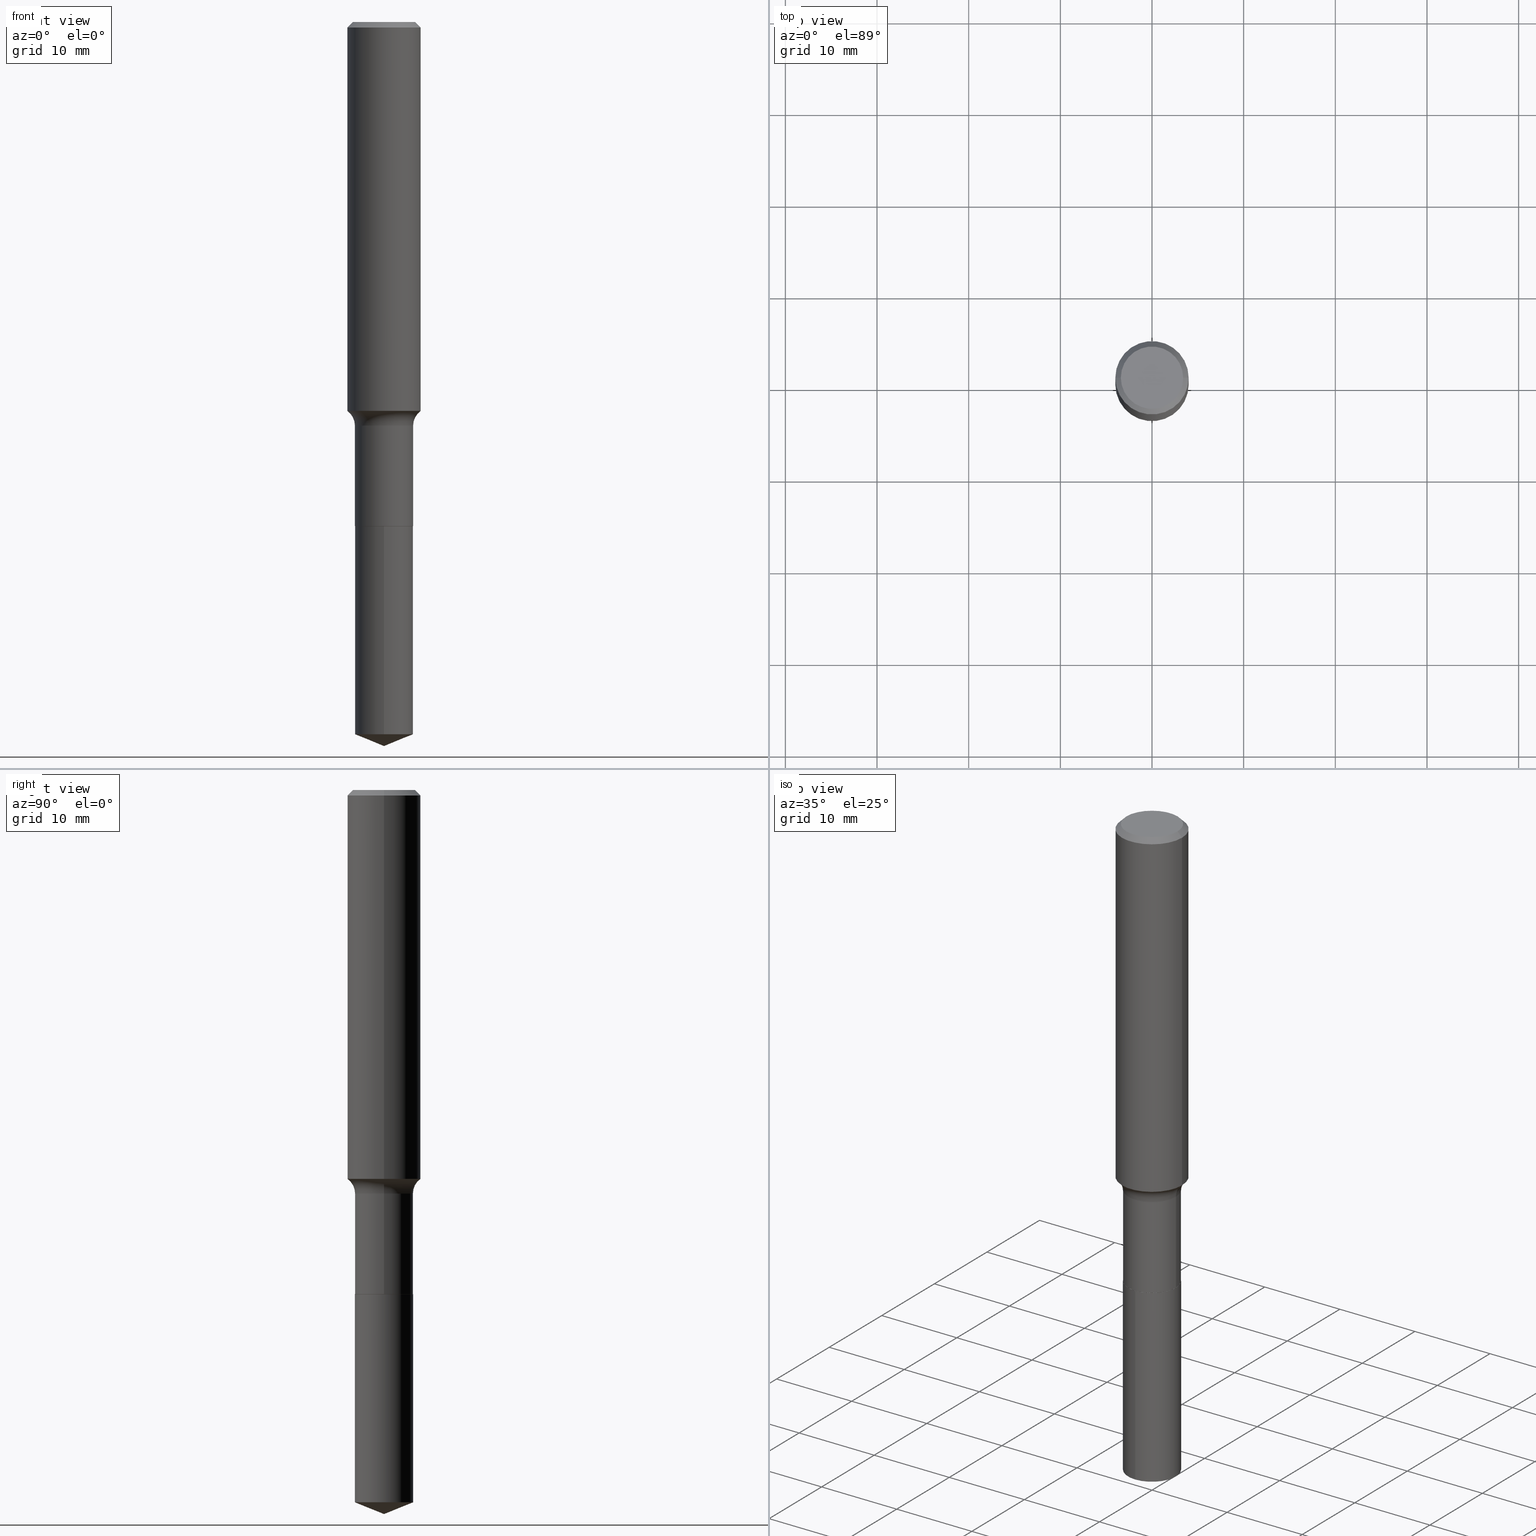
[diagram: canonical four-view strip — front | top / right | iso, engineering-drawing reading convention]
A machine part, canonical four-view strip (front | top / right | iso — engineering-drawing reading convention). The complete STEP part file that produces these views, byte-faithful:
ISO-10303-21;
HEADER;
FILE_DESCRIPTION (( 'STEP AP203' ),
    '1' );
FILE_NAME ('56810.STEP',
    '2024-04-19T14:02:21',
    ( '' ),
    ( '' ),
    'SwSTEP 2.0',
    'SolidWorks 2023',
    '' );
FILE_SCHEMA (( 'CONFIG_CONTROL_DESIGN' ));
ENDSEC;

DATA;
#1 = DIRECTION ( 'NONE',  ( -2.445585184634229399E-29, 3.491314678280194748E-15, 1.000000000000000000 ) ) ;
#2 = ORIENTED_EDGE ( 'NONE', *, *, #138, .T. ) ;
#3 = AXIS2_PLACEMENT_3D ( 'NONE', #249, #330, #117 ) ;
#4 = CALENDAR_DATE ( 2024, 19, 4 ) ;
#5 = EDGE_CURVE ( 'NONE', #236, #68, #53, .T. ) ;
#6 = ORIENTED_EDGE ( 'NONE', *, *, #7, .T. ) ;
#7 = EDGE_CURVE ( 'NONE', #18, #81, #10, .T. ) ;
#8 = DIRECTION ( 'NONE',  ( -2.445468806185136597E-29, 3.491481338843145583E-15, 1.000000000000000000 ) ) ;
#9 = ORIENTED_EDGE ( 'NONE', *, *, #61, .T. ) ;
#10 = LINE ( 'NONE', #433, #488 ) ;
#11 = ADVANCED_FACE ( 'NONE', ( #299 ), #337, .F. ) ;
#12 = EDGE_LOOP ( 'NONE', ( #202, #6, #70, #164 ) ) ;
#13 = DIRECTION ( 'NONE',  ( 1.000000000000000000, -6.982962677686266711E-15, 0.000000000000000000 ) ) ;
#14 = DIRECTION ( 'NONE',  ( 1.000000000000000000, -6.982962677686267499E-15, 4.876176775795936353E-29 ) ) ;
#15 = ORIENTED_EDGE ( 'NONE', *, *, #156, .F. ) ;
#16 = DIRECTION ( 'NONE',  ( 1.000000000000000000, -6.982962677686265922E-15, 0.000000000000000000 ) ) ;
#17 = FACE_OUTER_BOUND ( 'NONE', #52, .T. ) ;
#18 = VERTEX_POINT ( 'NONE', #168 ) ;
#19 = CARTESIAN_POINT ( 'NONE',  ( 5.295173606032675561E-29, -7.560104542997063911E-15, -2.165299999999999780 ) ) ;
#20 = CARTESIAN_POINT ( 'NONE',  ( 5.295173606032675561E-29, -7.560104542997063911E-15, -2.165299999999999780 ) ) ;
#21 = ADVANCED_FACE ( 'NONE', ( #302 ), #260, .T. ) ;
#22 = AXIS2_PLACEMENT_3D ( 'NONE', #466, #161, #13 ) ;
#23 = CALENDAR_DATE ( 2024, 19, 4 ) ;
#24 = DIRECTION ( 'NONE',  ( 1.000000000000000000, 0.000000000000000000, 0.000000000000000000 ) ) ;
#25 = DIRECTION ( 'NONE',  ( -0.7071067811866682540, 7.493145998870789611E-15, 0.7071067811864267805 ) ) ;
#26 = CALENDAR_DATE ( 2024, 19, 4 ) ;
#27 = CARTESIAN_POINT ( 'NONE',  ( 8.881784197002001741E-16, 0.1249999999999893557, -3.059696721770607475 ) ) ;
#28 = AXIS2_PLACEMENT_3D ( 'NONE', #96, #155, #252 ) ;
#29 = DIRECTION ( 'NONE',  ( -2.445468806185136597E-29, 3.491481338843145583E-15, 1.000000000000000000 ) ) ;
#30 = CIRCLE ( 'NONE', #340, 0.1244999999999999996 ) ;
#31 = CARTESIAN_POINT ( 'NONE',  ( 5.293950871629583880E-29, -7.558358802327641618E-15, -2.164800000000000058 ) ) ;
#32 = APPROVAL_STATUS ( 'not_yet_approved' ) ;
#33 = CYLINDRICAL_SURFACE ( 'NONE', #327, 0.1575000000000000844 ) ;
#34 = CARTESIAN_POINT ( 'NONE',  ( 0.1575000000000000844, -1.099816621735587677E-15, 7.679978421878603638E-30 ) ) ;
#35 = ADVANCED_FACE ( 'NONE', ( #402 ), #258, .T. ) ;
#36 = CARTESIAN_POINT ( 'NONE',  ( 0.000000000000000000, 0.000000000000000000, 0.000000000000000000 ) ) ;
#37 = CARTESIAN_POINT ( 'NONE',  ( 7.482496977980294484E-29, -1.068272494592047058E-14, -3.059696721770606587 ) ) ;
#38 = AXIS2_PLACEMENT_3D ( 'NONE', #84, #395, #465 ) ;
#39 = ORIENTED_EDGE ( 'NONE', *, *, #472, .T. ) ;
#40 = CC_DESIGN_APPROVAL ( #237, ( #76 ) ) ;
#41 = DIRECTION ( 'NONE',  ( -2.445468806185136597E-29, 3.491481338843145583E-15, 1.000000000000000000 ) ) ;
#42 = EDGE_LOOP ( 'NONE', ( #282, #379, #39, #257 ) ) ;
#43 = DIRECTION ( 'NONE',  ( -2.445468806185136597E-29, 3.491481338843145583E-15, 1.000000000000000000 ) ) ;
#44 = DIRECTION ( 'NONE',  ( -2.445468806185136597E-29, 3.491481338843145583E-15, 1.000000000000000000 ) ) ;
#45 = CALENDAR_DATE ( 2024, 19, 4 ) ;
#46 = CARTESIAN_POINT ( 'NONE',  ( -8.728703347107302879E-16, -0.1250000000000075495, -2.165299999999999336 ) ) ;
#47 = FACE_OUTER_BOUND ( 'NONE', #116, .T. ) ;
#48 = EDGE_LOOP ( 'NONE', ( #87, #438, #303 ) ) ;
#49 = CIRCLE ( 'NONE', #455, 0.07800000000000002764 ) ;
#50 = CC_DESIGN_PERSON_AND_ORGANIZATION_ASSIGNMENT ( #254, #60, ( #212 ) ) ;
#51 = DIRECTION ( 'NONE',  ( -2.445468806185136877E-29, 3.491481338843145188E-15, 1.000000000000000000 ) ) ;
#52 = EDGE_LOOP ( 'NONE', ( #154, #274 ) ) ;
#53 = LINE ( 'NONE', #470, #439 ) ;
#54 = CARTESIAN_POINT ( 'NONE',  ( -1.002970424325033577E-46, 1.431975951230896486E-32, 4.101342130344485961E-18 ) ) ;
#55 = AXIS2_PLACEMENT_3D ( 'NONE', #313, #446, #118 ) ;
#56 = ORGANIZATION ( 'UNSPECIFIED', 'UNSPECIFIED', '' ) ;
#57 = ADVANCED_FACE ( 'NONE', ( #115 ), #326, .F. ) ;
#58 = CARTESIAN_POINT ( 'NONE',  ( -0.1575000000000000011, -1.838827269989437194E-15, -0.02362500000000013201 ) ) ;
#59 = ORIENTED_EDGE ( 'NONE', *, *, #253, .F. ) ;
#60 = PERSON_AND_ORGANIZATION_ROLE ( 'design_owner' ) ;
#61 = EDGE_CURVE ( 'NONE', #192, #160, #288, .T. ) ;
#62 = DIRECTION ( 'NONE',  ( -2.445468806185136597E-29, 3.491481338843145583E-15, 1.000000000000000000 ) ) ;
#63 = DIRECTION ( 'NONE',  ( 1.000000000000000000, -6.982962677686266711E-15, 0.000000000000000000 ) ) ;
#64 = CARTESIAN_POINT ( 'NONE',  ( 0.000000000000000000, 0.000000000000000000, 0.000000000000000000 ) ) ;
#65 = PRODUCT_RELATED_PRODUCT_CATEGORY ( 'detail', '', ( #212 ) ) ;
#66 = CIRCLE ( 'NONE', #55, 0.1250000000000000000 ) ;
#67 = MECHANICAL_CONTEXT ( 'NONE', #358, 'mechanical' ) ;
#68 = VERTEX_POINT ( 'NONE', #58 ) ;
#69 = AXIS2_PLACEMENT_3D ( 'NONE', #285, #428, #362 ) ;
#70 = ORIENTED_EDGE ( 'NONE', *, *, #321, .T. ) ;
#71 = CARTESIAN_POINT ( 'NONE',  ( 0.000000000000000000, 0.000000000000000000, 0.000000000000000000 ) ) ;
#72 = FACE_OUTER_BOUND ( 'NONE', #42, .T. ) ;
#73 = VERTEX_POINT ( 'NONE', #245 ) ;
#74 = EDGE_CURVE ( 'NONE', #73, #397, #208, .T. ) ;
#75 = EDGE_CURVE ( 'NONE', #382, #492, #366, .T. ) ;
#76 = SECURITY_CLASSIFICATION ( '', '', #341 ) ;
#77 = EDGE_LOOP ( 'NONE', ( #415, #454, #106, #250 ) ) ;
#78 = COORDINATED_UNIVERSAL_TIME_OFFSET ( 5, 0, .BEHIND. ) ;
#79 = APPROVAL_STATUS ( 'not_yet_approved' ) ;
#80 = EDGE_LOOP ( 'NONE', ( #59, #143, #328, #392 ) ) ;
#81 = VERTEX_POINT ( 'NONE', #464 ) ;
#82 = CONICAL_SURFACE ( 'NONE', #387, 97.44436430773063762, 1.186823891356152849 ) ;
#83 = DIRECTION ( 'NONE',  ( -2.445468806185136597E-29, 3.491481338843145583E-15, 1.000000000000000000 ) ) ;
#84 = CARTESIAN_POINT ( 'NONE',  ( 5.293950871629583880E-29, -7.558358802327641618E-15, -2.164800000000000058 ) ) ;
#85 = DIRECTION ( 'NONE',  ( -2.445468806185136877E-29, 3.491481338843145188E-15, 1.000000000000000000 ) ) ;
#86 = EDGE_CURVE ( 'NONE', #188, #425, #240, .T. ) ;
#87 = ORIENTED_EDGE ( 'NONE', *, *, #277, .F. ) ;
#88 = ORIENTED_EDGE ( 'NONE', *, *, #92, .F. ) ;
#89 = DIRECTION ( 'NONE',  ( -0.7071067811865453523, 2.468850131082234184E-15, -0.7071067811865496822 ) ) ;
#90 = CIRCLE ( 'NONE', #216, 0.1338749999999999940 ) ;
#91 = LOCAL_TIME ( 10, 2, 21.00000000000000000, #287 ) ;
#92 = EDGE_CURVE ( 'NONE', #194, #342, #140, .T. ) ;
#93 = FACE_OUTER_BOUND ( 'NONE', #12, .T. ) ;
#94 = DIRECTION ( 'NONE',  ( -2.445468806185136597E-29, 3.491481338843145583E-15, 1.000000000000000000 ) ) ;
#95 = PERSON_AND_ORGANIZATION ( #144, #56 ) ;
#96 = CARTESIAN_POINT ( 'NONE',  ( 4.240687456805644908E-29, -6.054577789687898491E-15, -1.734099999999999975 ) ) ;
#97 = DIRECTION ( 'NONE',  ( 1.000000000000000000, -6.982962677686266711E-15, 4.876170806578254279E-29 ) ) ;
#98 = AXIS2_PLACEMENT_3D ( 'NONE', #31, #94, #220 ) ;
#99 = VECTOR ( 'NONE', #25, 39.37007874015748143 ) ;
#100 = FACE_OUTER_BOUND ( 'NONE', #211, .T. ) ;
#101 = DIRECTION ( 'NONE',  ( -2.445468806185136597E-29, 3.491481338843145583E-15, 1.000000000000000000 ) ) ;
#102 = ORIENTED_EDGE ( 'NONE', *, *, #375, .F. ) ;
#103 = AXIS2_PLACEMENT_3D ( 'NONE', #459, #406, #162 ) ;
#104 = UNCERTAINTY_MEASURE_WITH_UNIT (LENGTH_MEASURE( 1.000000000000000082E-05 ), #469, 'distance_accuracy_value', 'NONE');
#105 = DIRECTION ( 'NONE',  ( -2.445468806185136597E-29, 3.491481338843145583E-15, 1.000000000000000000 ) ) ;
#106 = ORIENTED_EDGE ( 'NONE', *, *, #375, .T. ) ;
#107 = DIRECTION ( 'NONE',  ( -2.445468806185136597E-29, 3.491481338843145583E-15, 1.000000000000000000 ) ) ;
#108 = CLOSED_SHELL ( 'NONE', ( #174, #180, #35, #269, #346, #221, #11, #422, #308, #57, #120, #360 ) ) ;
#109 = VECTOR ( 'NONE', #390, 39.37007874015748854 ) ;
#110 = DATE_TIME_ROLE ( 'classification_date' ) ;
#111 = ORIENTED_EDGE ( 'NONE', *, *, #434, .T. ) ;
#112 = ORIENTED_EDGE ( 'NONE', *, *, #130, .T. ) ;
#113 = CARTESIAN_POINT ( 'NONE',  ( 7.605755052737738579E-29, -1.085940865262097747E-14, -3.110199999999999854 ) ) ;
#114 = AXIS2_PLACEMENT_3D ( 'NONE', #483, #367, #297 ) ;
#115 = FACE_OUTER_BOUND ( 'NONE', #136, .T. ) ;
#116 = EDGE_LOOP ( 'NONE', ( #296, #332, #311, #200 ) ) ;
#117 = DIRECTION ( 'NONE',  ( -6.982962677686265922E-15, -1.000000000000000000, 3.498761904101748277E-15 ) ) ;
#118 = DIRECTION ( 'NONE',  ( -6.982962677686265922E-15, -1.000000000000000000, 4.370956789862821150E-15 ) ) ;
#119 = CYLINDRICAL_SURFACE ( 'NONE', #170, 0.1250000000000000278 ) ;
#120 = ADVANCED_FACE ( 'NONE', ( #374 ), #242, .F. ) ;
#121 = CALENDAR_DATE ( 2024, 19, 4 ) ;
#122 = EDGE_LOOP ( 'NONE', ( #238, #146, #111, #102 ) ) ;
#123 = CIRCLE ( 'NONE', #157, 0.1575000000000000011 ) ;
#124 =( NAMED_UNIT ( * ) PLANE_ANGLE_UNIT ( ) SI_UNIT ( $, .RADIAN. ) );
#125 = DIRECTION ( 'NONE',  ( 0.7071067811865453523, -7.319954787623248157E-15, -0.7071067811865496822 ) ) ;
#126 = DIRECTION ( 'NONE',  ( 7.105427357601001859E-15, 1.000000000000000000, -3.491481338843145583E-15 ) ) ;
#127 = EDGE_LOOP ( 'NONE', ( #391, #353, #351, #309 ) ) ;
#128 = EDGE_CURVE ( 'NONE', #306, #492, #376, .T. ) ;
#129 = DIRECTION ( 'NONE',  ( -6.982962677686265922E-15, -1.000000000000000000, 3.498761904101748277E-15 ) ) ;
#130 = EDGE_CURVE ( 'NONE', #192, #73, #215, .T. ) ;
#131 = VECTOR ( 'NONE', #51, 39.37007874015748143 ) ;
#132 = CONICAL_SURFACE ( 'NONE', #361, 0.1244999999999999996, 0.7853981633976190313 ) ;
#133 = COORDINATED_UNIVERSAL_TIME_OFFSET ( 5, 0, .BEHIND. ) ;
#134 = ADVANCED_FACE ( 'NONE', ( #17 ), #339, .F. ) ;
#135 = DESIGN_CONTEXT ( 'detailed design', #421, 'design' ) ;
#136 = EDGE_LOOP ( 'NONE', ( #485, #289 ) ) ;
#137 = ORIENTED_EDGE ( 'NONE', *, *, #128, .F. ) ;
#138 = EDGE_CURVE ( 'NONE', #73, #192, #185, .T. ) ;
#139 = PERSON_AND_ORGANIZATION_ROLE ( 'classification_officer' ) ;
#140 = CIRCLE ( 'NONE', #22, 0.1244999999999999996 ) ;
#141 = AXIS2_PLACEMENT_3D ( 'NONE', #54, #467, #97 ) ;
#142 = DIRECTION ( 'NONE',  ( -6.982962677686265922E-15, -1.000000000000000000, 4.370956789862821150E-15 ) ) ;
#143 = ORIENTED_EDGE ( 'NONE', *, *, #92, .T. ) ;
#144 = PERSON ( 'UNSPECIFIED', 'UNSPECIFIED', 'UNSPECIFIED', ('UNSPECIFIED'), ('UNSPECIFIED'), ('UNSPECIFIED') ) ;
#145 = ORIENTED_EDGE ( 'NONE', *, *, #74, .F. ) ;
#146 = ORIENTED_EDGE ( 'NONE', *, *, #411, .T. ) ;
#147 = AXIS2_PLACEMENT_3D ( 'NONE', #37, #191, #142 ) ;
#148 = AXIS2_PLACEMENT_3D ( 'NONE', #453, #101, #265 ) ;
#149 = CC_DESIGN_DATE_AND_TIME_ASSIGNMENT ( #324, #110, ( #76 ) ) ;
#150 = DIRECTION ( 'NONE',  ( 1.000000000000000000, -6.982962677686266711E-15, 0.000000000000000000 ) ) ;
#151 = PERSON_AND_ORGANIZATION ( #144, #56 ) ;
#152 =( LENGTH_UNIT ( ) NAMED_UNIT ( * ) SI_UNIT ( $, .METRE. ) );
#153 = ADVANCED_FACE ( 'NONE', ( #72 ), #283, .T. ) ;
#154 = ORIENTED_EDGE ( 'NONE', *, *, #128, .T. ) ;
#155 = DIRECTION ( 'NONE',  ( -2.445468806185136597E-29, 3.491481338843145583E-15, 1.000000000000000000 ) ) ;
#156 = EDGE_CURVE ( 'NONE', #247, #382, #175, .T. ) ;
#157 = AXIS2_PLACEMENT_3D ( 'NONE', #235, #83, #424 ) ;
#158 = CC_DESIGN_SECURITY_CLASSIFICATION ( #76, ( #418 ) ) ;
#159 = DIRECTION ( 'NONE',  ( -2.445585184634229399E-29, 3.491314678280194748E-15, 1.000000000000000000 ) ) ;
#160 = VERTEX_POINT ( 'NONE', #228 ) ;
#161 = DIRECTION ( 'NONE',  ( -2.445468806185136597E-29, 3.491481338843145583E-15, 1.000000000000000000 ) ) ;
#162 = DIRECTION ( 'NONE',  ( -1.000000000000000000, 6.982962677686265922E-15, -4.876176775795935793E-29 ) ) ;
#163 = DIRECTION ( 'NONE',  ( 1.000000000000000000, -6.982962677686265922E-15, 0.000000000000000000 ) ) ;
#164 = ORIENTED_EDGE ( 'NONE', *, *, #5, .F. ) ;
#165 = DIRECTION ( 'NONE',  ( 1.000000000000000000, -6.982962677686267499E-15, 4.876176775795935793E-29 ) ) ;
#166 = DIRECTION ( 'NONE',  ( -2.445468806185136877E-29, 3.491481338843145188E-15, 1.000000000000000000 ) ) ;
#167 = DIRECTION ( 'NONE',  ( -2.445585184634229399E-29, 3.491314678280194748E-15, 1.000000000000000000 ) ) ;
#168 = CARTESIAN_POINT ( 'NONE',  ( 0.1338749999999999940, -1.040731925365424925E-15, 4.101342130351393887E-18 ) ) ;
#169 = VECTOR ( 'NONE', #159, 39.37007874015748143 ) ;
#170 = AXIS2_PLACEMENT_3D ( 'NONE', #293, #62, #165 ) ;
#171 = CARTESIAN_POINT ( 'NONE',  ( -0.2029999999999999860, -4.612176036094894621E-15, -1.734099999999999975 ) ) ;
#172 = CARTESIAN_POINT ( 'NONE',  ( -0.1575000000000002232, -4.714273102170862595E-15, -1.670745836758741554 ) ) ;
#173 = CARTESIAN_POINT ( 'NONE',  ( -0.1244999999999999996, -6.675478836975738788E-15, -2.165299999999999780 ) ) ;
#174 = ADVANCED_FACE ( 'NONE', ( #318 ), #132, .T. ) ;
#175 = LINE ( 'NONE', #232, #186 ) ;
#176 = AXIS2_PLACEMENT_3D ( 'NONE', #64, #203, #14 ) ;
#177 = AXIS2_PLACEMENT_3D ( 'NONE', #276, #8, #458 ) ;
#178 = CC_DESIGN_APPROVAL ( #471, ( #418 ) ) ;
#179 = CYLINDRICAL_SURFACE ( 'NONE', #114, 0.1250000000000000000 ) ;
#180 = ADVANCED_FACE ( 'NONE', ( #93 ), #207, .T. ) ;
#181 = PERSON_AND_ORGANIZATION ( #144, #56 ) ;
#182 = CARTESIAN_POINT ( 'NONE',  ( 4.240687456805644908E-29, -6.054577789687898491E-15, -1.734099999999999975 ) ) ;
#183 = LINE ( 'NONE', #385, #275 ) ;
#184 = FACE_OUTER_BOUND ( 'NONE', #80, .T. ) ;
#185 = CIRCLE ( 'NONE', #98, 0.1250000000000000555 ) ;
#186 = VECTOR ( 'NONE', #271, 39.37007874015748143 ) ;
#187 = ORIENTED_EDGE ( 'NONE', *, *, #321, .F. ) ;
#188 = VERTEX_POINT ( 'NONE', #172 ) ;
#189 = CARTESIAN_POINT ( 'NONE',  ( -8.728703347107302879E-16, -0.1250000000000075495, -2.165299999999999336 ) ) ;
#190 = DATE_AND_TIME ( #45, #243 ) ;
#191 = DIRECTION ( 'NONE',  ( -2.445585184634229399E-29, 3.491314678280194748E-15, 1.000000000000000000 ) ) ;
#192 = VERTEX_POINT ( 'NONE', #343 ) ;
#193 = APPROVAL_ROLE ( '' ) ;
#194 = VERTEX_POINT ( 'NONE', #290 ) ;
#195 = AXIS2_PLACEMENT_3D ( 'NONE', #489, #105, #419 ) ;
#196 = APPROVAL_PERSON_ORGANIZATION ( #345, #471, #476 ) ;
#197 = DIRECTION ( 'NONE',  ( -1.000000000000000000, 7.105427357601001859E-15, 0.000000000000000000 ) ) ;
#198 = APPLICATION_PROTOCOL_DEFINITION ( 'international standard', 'config_control_design', 1994, #421 ) ;
#199 = FACE_OUTER_BOUND ( 'NONE', #122, .T. ) ;
#200 = ORIENTED_EDGE ( 'NONE', *, *, #399, .T. ) ;
#201 = DIRECTION ( 'NONE',  ( -2.445585184634229399E-29, 3.491314678280194748E-15, 1.000000000000000000 ) ) ;
#202 = ORIENTED_EDGE ( 'NONE', *, *, #286, .F. ) ;
#203 = DIRECTION ( 'NONE',  ( -2.445468806185136597E-29, 3.491481338843145583E-15, 1.000000000000000000 ) ) ;
#204 = EDGE_CURVE ( 'NONE', #342, #73, #183, .T. ) ;
#205 = EDGE_LOOP ( 'NONE', ( #432, #272, #187, #400 ) ) ;
#206 = AXIS2_PLACEMENT_3D ( 'NONE', #331, #167, #435 ) ;
#207 = CONICAL_SURFACE ( 'NONE', #479, 0.1575000000000000011, 0.7853981633974452814 ) ;
#208 = LINE ( 'NONE', #398, #131 ) ;
#209 = CARTESIAN_POINT ( 'NONE',  ( 0.1249999999999999861, -6.927448124398681041E-15, -1.734099999999999975 ) ) ;
#210 = COORDINATED_UNIVERSAL_TIME_OFFSET ( 5, 0, .BEHIND. ) ;
#211 = EDGE_LOOP ( 'NONE', ( #248, #112, #462, #259 ) ) ;
#212 = PRODUCT ( '56810', '56810', '', ( #67 ) ) ;
#213 = DIRECTION ( 'NONE',  ( -2.445468806185136597E-29, 3.491481338843145583E-15, 1.000000000000000000 ) ) ;
#214 = CARTESIAN_POINT ( 'NONE',  ( 7.606259041249379909E-29, -1.085868691238706343E-14, -3.110199999999999854 ) ) ;
#215 = CIRCLE ( 'NONE', #38, 0.1250000000000000555 ) ;
#216 = AXIS2_PLACEMENT_3D ( 'NONE', #278, #107, #239 ) ;
#217 = CONICAL_SURFACE ( 'NONE', #69, 0.1575000000000000011, 0.7853981633974452814 ) ;
#218 = EDGE_CURVE ( 'NONE', #492, #306, #404, .T. ) ;
#219 = APPROVAL_PERSON_ORGANIZATION ( #457, #449, #193 ) ;
#220 = DIRECTION ( 'NONE',  ( 1.000000000000000000, -6.982962677686267499E-15, 0.000000000000000000 ) ) ;
#221 = ADVANCED_FACE ( 'NONE', ( #100 ), #264, .T. ) ;
#222 = DIRECTION ( 'NONE',  ( -2.445585184634229399E-29, 3.491314678280194748E-15, 1.000000000000000000 ) ) ;
#223 = DIRECTION ( 'NONE',  ( 1.000000000000000000, -6.982962677686268288E-15, 0.000000000000000000 ) ) ;
#224 = PERSON_AND_ORGANIZATION ( #144, #56 ) ;
#225 = CARTESIAN_POINT ( 'NONE',  ( 4.240687456805644908E-29, -6.054577789687898491E-15, -1.734099999999999975 ) ) ;
#226 = AXIS2_PLACEMENT_3D ( 'NONE', #182, #491, #444 ) ;
#227 = ORIENTED_EDGE ( 'NONE', *, *, #233, .F. ) ;
#228 = CARTESIAN_POINT ( 'NONE',  ( -0.1249999999999999861, -5.918289876307644428E-15, -1.734099999999999975 ) ) ;
#229 = LINE ( 'NONE', #34, #323 ) ;
#230 = ADVANCED_FACE ( 'NONE', ( #482 ), #82, .T. ) ;
#231 = MANIFOLD_SOLID_BREP ( 'Body-Move/Copy2[1]', #445 ) ;
#232 = CARTESIAN_POINT ( 'NONE',  ( 7.606263460633716514E-29, -1.085868691238706027E-14, -3.110199999999999854 ) ) ;
#233 = EDGE_CURVE ( 'NONE', #188, #68, #441, .T. ) ;
#234 = CIRCLE ( 'NONE', #147, 0.1250000000000000000 ) ;
#235 = CARTESIAN_POINT ( 'NONE',  ( 5.777420054612417601E-31, -8.248624663016977839E-17, -0.02362500000000013201 ) ) ;
#236 = VERTEX_POINT ( 'NONE', #335 ) ;
#237 = APPROVAL ( #79, 'UNSPECIFIED' ) ;
#238 = ORIENTED_EDGE ( 'NONE', *, *, #86, .F. ) ;
#239 = DIRECTION ( 'NONE',  ( 1.000000000000000000, -6.982962677686266711E-15, 4.876170806578254279E-29 ) ) ;
#240 = CIRCLE ( 'NONE', #386, 0.1575000000000001954 ) ;
#241 = CIRCLE ( 'NONE', #427, 0.07800000000000002764 ) ;
#242 = PLANE ( 'NONE',  #314 ) ;
#243 = LOCAL_TIME ( 10, 2, 21.00000000000000000, #78 ) ;
#244 = APPROVAL_STATUS ( 'not_yet_approved' ) ;
#245 = CARTESIAN_POINT ( 'NONE',  ( 0.1250000000000000555, -8.431229137038424957E-15, -2.164800000000000058 ) ) ;
#246 = EDGE_CURVE ( 'NONE', #342, #194, #30, .T. ) ;
#247 = VERTEX_POINT ( 'NONE', #214 ) ;
#248 = ORIENTED_EDGE ( 'NONE', *, *, #61, .F. ) ;
#249 = CARTESIAN_POINT ( 'NONE',  ( -8.867687423781862441E-28, 1.265942860080548298E-13, 36.25987874015748247 ) ) ;
#250 = ORIENTED_EDGE ( 'NONE', *, *, #414, .T. ) ;
#251 = PERSON_AND_ORGANIZATION_ROLE ( 'creator' ) ;
#252 = DIRECTION ( 'NONE',  ( 1.000000000000000000, -6.982962677686266711E-15, 4.883557194083112901E-29 ) ) ;
#253 = EDGE_CURVE ( 'NONE', #194, #192, #377, .T. ) ;
#254 = PERSON_AND_ORGANIZATION ( #144, #56 ) ;
#255 = ORIENTED_EDGE ( 'NONE', *, *, #363, .F. ) ;
#256 = CARTESIAN_POINT ( 'NONE',  ( -0.1575000000000000844, 1.119104808822158392E-15, -7.747322767151481189E-30 ) ) ;
#257 = ORIENTED_EDGE ( 'NONE', *, *, #218, .F. ) ;
#258 = CYLINDRICAL_SURFACE ( 'NONE', #176, 0.1575000000000000844 ) ;
#259 = ORIENTED_EDGE ( 'NONE', *, *, #434, .F. ) ;
#260 = CONICAL_SURFACE ( 'NONE', #3, 97.44436430773063762, 1.186823891356152849 ) ;
#261 = COORDINATED_UNIVERSAL_TIME_OFFSET ( 5, 0, .BEHIND. ) ;
#262 = CIRCLE ( 'NONE', #226, 0.1249999999999999861 ) ;
#263 = CIRCLE ( 'NONE', #148, 0.1575000000000001954 ) ;
#264 = CYLINDRICAL_SURFACE ( 'NONE', #315, 0.1250000000000000278 ) ;
#265 = DIRECTION ( 'NONE',  ( 1.000000000000000000, -6.982962677686265922E-15, 0.000000000000000000 ) ) ;
#266 = LOCAL_TIME ( 10, 2, 21.00000000000000000, #133 ) ;
#267 = FACE_OUTER_BOUND ( 'NONE', #416, .T. ) ;
#268 = PRODUCT_DEFINITION ( 'UNKNOWN', '', #418, #135 ) ;
#269 = ADVANCED_FACE ( 'NONE', ( #199 ), #349, .F. ) ;
#270 =( NAMED_UNIT ( * ) SI_UNIT ( $, .STERADIAN. ) SOLID_ANGLE_UNIT ( ) );
#271 = DIRECTION ( 'NONE',  ( 6.588037525764811801E-15, 0.9271838545667919762, 0.3746065934159006905 ) ) ;
#272 = ORIENTED_EDGE ( 'NONE', *, *, #233, .T. ) ;
#273 = LINE ( 'NONE', #113, #109 ) ;
#274 = ORIENTED_EDGE ( 'NONE', *, *, #218, .T. ) ;
#275 = VECTOR ( 'NONE', #355, 39.37007874015748143 ) ;
#276 = CARTESIAN_POINT ( 'NONE',  ( 4.240687456805644908E-29, -6.054577789687898491E-15, -1.734099999999999975 ) ) ;
#277 = EDGE_CURVE ( 'NONE', #247, #451, #273, .T. ) ;
#278 = CARTESIAN_POINT ( 'NONE',  ( -1.002970424325033577E-46, 1.431975951230896486E-32, 4.101342130344485961E-18 ) ) ;
#279 = ORIENTED_EDGE ( 'NONE', *, *, #329, .T. ) ;
#280 = PRODUCT_DEFINITION_SHAPE ( 'NONE', 'NONE',  #268 ) ;
#281 = PERSON_AND_ORGANIZATION ( #144, #56 ) ;
#282 = ORIENTED_EDGE ( 'NONE', *, *, #75, .F. ) ;
#283 = CYLINDRICAL_SURFACE ( 'NONE', #440, 0.1250000000000000000 ) ;
#284 = AXIS2_PLACEMENT_3D ( 'NONE', #305, #410, #348 ) ;
#285 = CARTESIAN_POINT ( 'NONE',  ( 5.777420054612417601E-31, -8.248624663016977839E-17, -0.02362500000000013201 ) ) ;
#286 = EDGE_CURVE ( 'NONE', #18, #236, #90, .T. ) ;
#287 = COORDINATED_UNIVERSAL_TIME_OFFSET ( 5, 0, .BEHIND. ) ;
#288 = LINE ( 'NONE', #431, #322 ) ;
#289 = ORIENTED_EDGE ( 'NONE', *, *, #286, .T. ) ;
#290 = CARTESIAN_POINT ( 'NONE',  ( -0.1244999999999999996, -6.672829609801627587E-15, -2.165299999999999780 ) ) ;
#291 = DIRECTION ( 'NONE',  ( 1.000000000000000000, -6.982962677686265922E-15, 4.876176775795935793E-29 ) ) ;
#292 = DIRECTION ( 'NONE',  ( -2.445468806185136597E-29, 3.491481338843145583E-15, 1.000000000000000000 ) ) ;
#293 = CARTESIAN_POINT ( 'NONE',  ( 0.000000000000000000, 0.000000000000000000, 0.000000000000000000 ) ) ;
#294 = CARTESIAN_POINT ( 'NONE',  ( -8.867687423781862441E-28, 1.265942860080548298E-13, 36.25987874015748247 ) ) ;
#295 = APPROVAL_DATE_TIME ( #463, #449 ) ;
#296 = ORIENTED_EDGE ( 'NONE', *, *, #7, .F. ) ;
#297 = DIRECTION ( 'NONE',  ( -6.982962677686265922E-15, -1.000000000000000000, 4.370956789862821150E-15 ) ) ;
#298 = ADVANCED_BREP_SHAPE_REPRESENTATION ( '56810', ( #231, #412, #388 ), #460 ) ;
#299 = FACE_OUTER_BOUND ( 'NONE', #77, .T. ) ;
#300 = ORIENTED_EDGE ( 'NONE', *, *, #246, .F. ) ;
#301 = APPROVAL_DATE_TIME ( #407, #237 ) ;
#302 = FACE_OUTER_BOUND ( 'NONE', #320, .T. ) ;
#303 = ORIENTED_EDGE ( 'NONE', *, *, #329, .F. ) ;
#304 = SHAPE_DEFINITION_REPRESENTATION ( #280, #298 ) ;
#305 = CARTESIAN_POINT ( 'NONE',  ( 5.295173606032675561E-29, -7.560104542997063911E-15, -2.165299999999999780 ) ) ;
#306 = VERTEX_POINT ( 'NONE', #46 ) ;
#307 = DIRECTION ( 'NONE',  ( -2.445585184634229399E-29, 3.491314678280194748E-15, 1.000000000000000000 ) ) ;
#308 = ADVANCED_FACE ( 'NONE', ( #47 ), #217, .T. ) ;
#309 = ORIENTED_EDGE ( 'NONE', *, *, #204, .F. ) ;
#310 = DIRECTION ( 'NONE',  ( 1.000000000000000000, -6.982962677686263555E-15, 0.000000000000000000 ) ) ;
#311 = ORIENTED_EDGE ( 'NONE', *, *, #5, .T. ) ;
#312 = CC_DESIGN_PERSON_AND_ORGANIZATION_ASSIGNMENT ( #224, #480, ( #418 ) ) ;
#313 = CARTESIAN_POINT ( 'NONE',  ( 7.482496977980294484E-29, -1.068272494592047058E-14, -3.059696721770606587 ) ) ;
#314 = AXIS2_PLACEMENT_3D ( 'NONE', #20, #429, #291 ) ;
#315 = AXIS2_PLACEMENT_3D ( 'NONE', #71, #29, #477 ) ;
#316 = CARTESIAN_POINT ( 'NONE',  ( 0.1575000000000002232, -6.933194532728610045E-15, -1.670745836758741554 ) ) ;
#317 = ORIENTED_EDGE ( 'NONE', *, *, #86, .T. ) ;
#318 = FACE_OUTER_BOUND ( 'NONE', #127, .T. ) ;
#319 = ORIENTED_EDGE ( 'NONE', *, *, #354, .T. ) ;
#320 = EDGE_LOOP ( 'NONE', ( #15, #393, #255 ) ) ;
#321 = EDGE_CURVE ( 'NONE', #81, #68, #123, .T. ) ;
#322 = VECTOR ( 'NONE', #85, 39.37007874015748143 ) ;
#323 = VECTOR ( 'NONE', #356, 39.37007874015748143 ) ;
#324 = DATE_AND_TIME ( #121, #475 ) ;
#325 = ORIENTED_EDGE ( 'NONE', *, *, #414, .F. ) ;
#326 = PLANE ( 'NONE',  #103 ) ;
#327 = AXIS2_PLACEMENT_3D ( 'NONE', #36, #41, #486 ) ;
#328 = ORIENTED_EDGE ( 'NONE', *, *, #204, .T. ) ;
#329 = EDGE_CURVE ( 'NONE', #451, #382, #234, .T. ) ;
#330 = DIRECTION ( 'NONE',  ( -2.445585184634229399E-29, 3.491314678280194748E-15, 1.000000000000000000 ) ) ;
#331 = CARTESIAN_POINT ( 'NONE',  ( 5.295173606032675561E-29, -7.560104542997063911E-15, -2.165299999999999780 ) ) ;
#332 = ORIENTED_EDGE ( 'NONE', *, *, #364, .F. ) ;
#333 = CC_DESIGN_PERSON_AND_ORGANIZATION_ASSIGNMENT ( #95, #478, ( #418 ) ) ;
#334 = CARTESIAN_POINT ( 'NONE',  ( 8.881784197001780860E-16, 0.1249999999999924366, -2.165300000000000669 ) ) ;
#335 = CARTESIAN_POINT ( 'NONE',  ( -0.1338749999999999940, 9.760872517903331886E-16, 4.101342130337804525E-18 ) ) ;
#336 = DIRECTION ( 'NONE',  ( 2.445468806185136597E-29, -3.491481338843145583E-15, -1.000000000000000000 ) ) ;
#337 = TOROIDAL_SURFACE ( 'NONE', #28, 0.2029999999999999860, 0.07800000000000002764 ) ;
#338 = DIRECTION ( 'NONE',  ( -2.445468806185136597E-29, 3.491481338843145583E-15, 1.000000000000000000 ) ) ;
#339 = PLANE ( 'NONE',  #284 ) ;
#340 = AXIS2_PLACEMENT_3D ( 'NONE', #19, #338, #63 ) ;
#341 = SECURITY_CLASSIFICATION_LEVEL ( 'unclassified' ) ;
#342 = VERTEX_POINT ( 'NONE', #423 ) ;
#343 = CARTESIAN_POINT ( 'NONE',  ( -0.1250000000000000555, -5.918289876307644428E-15, -2.164800000000000058 ) ) ;
#344 = APPLICATION_PROTOCOL_DEFINITION ( 'international standard', 'config_control_design', 1994, #358 ) ;
#345 = PERSON_AND_ORGANIZATION ( #144, #56 ) ;
#346 = ADVANCED_FACE ( 'NONE', ( #368 ), #119, .T. ) ;
#347 = APPROVAL_DATE_TIME ( #437, #471 ) ;
#348 = DIRECTION ( 'NONE',  ( 6.982962677686265922E-15, 1.000000000000000000, -3.491314678280194748E-15 ) ) ;
#349 = TOROIDAL_SURFACE ( 'NONE', #177, 0.2029999999999999860, 0.07800000000000002764 ) ;
#350 = CC_DESIGN_APPROVAL ( #449, ( #268 ) ) ;
#351 = ORIENTED_EDGE ( 'NONE', *, *, #138, .F. ) ;
#352 = CARTESIAN_POINT ( 'NONE',  ( 8.881784197001999769E-16, 0.1249999999999924366, -2.165300000000000669 ) ) ;
#353 = ORIENTED_EDGE ( 'NONE', *, *, #253, .T. ) ;
#354 = EDGE_CURVE ( 'NONE', #425, #81, #229, .T. ) ;
#355 = DIRECTION ( 'NONE',  ( 0.7071067811866682540, -2.468850131083521605E-15, 0.7071067811864267805 ) ) ;
#356 = DIRECTION ( 'NONE',  ( -2.445468806185136877E-29, 3.491481338843145188E-15, 1.000000000000000000 ) ) ;
#357 = CIRCLE ( 'NONE', #417, 0.1575000000000000011 ) ;
#358 = APPLICATION_CONTEXT ( 'configuration controlled 3d designs of mechanical parts and assemblies' ) ;
#359 = CC_DESIGN_DATE_AND_TIME_ASSIGNMENT ( #190, #408, ( #268 ) ) ;
#360 = ADVANCED_FACE ( 'NONE', ( #184 ), #436, .T. ) ;
#361 = AXIS2_PLACEMENT_3D ( 'NONE', #384, #43, #150 ) ;
#362 = DIRECTION ( 'NONE',  ( -1.000000000000000000, 6.982962677686265922E-15, 0.000000000000000000 ) ) ;
#363 = EDGE_CURVE ( 'NONE', #382, #451, #66, .T. ) ;
#364 = EDGE_CURVE ( 'NONE', #236, #18, #447, .T. ) ;
#365 = DIRECTION ( 'NONE',  ( -1.000000000000000000, 6.982962677686265922E-15, 0.000000000000000000 ) ) ;
#366 = LINE ( 'NONE', #334, #169 ) ;
#367 = DIRECTION ( 'NONE',  ( -2.445585184634229399E-29, 3.491314678280194748E-15, 1.000000000000000000 ) ) ;
#368 = FACE_OUTER_BOUND ( 'NONE', #401, .T. ) ;
#369 = VECTOR ( 'NONE', #1, 39.37007874015748143 ) ;
#370 = CARTESIAN_POINT ( 'NONE',  ( 0.2029999999999999860, -7.472119213258210665E-15, -1.734099999999999975 ) ) ;
#371 = CARTESIAN_POINT ( 'NONE',  ( 4.085756826857186325E-29, -5.833377910993022565E-15, -1.670745836758741554 ) ) ;
#372 = CARTESIAN_POINT ( 'NONE',  ( 5.777420054612417601E-31, -8.248624663016977839E-17, -0.02362500000000013201 ) ) ;
#373 = CARTESIAN_POINT ( 'NONE',  ( 5.777420054612417601E-31, -8.248624663016977839E-17, -0.02362500000000013201 ) ) ;
#374 = FACE_OUTER_BOUND ( 'NONE', #452, .T. ) ;
#375 = EDGE_CURVE ( 'NONE', #425, #397, #241, .T. ) ;
#376 = CIRCLE ( 'NONE', #206, 0.1250000000000000000 ) ;
#377 = LINE ( 'NONE', #173, #99 ) ;
#378 = DIRECTION ( 'NONE',  ( 0.000000000000000000, 0.000000000000000000, 1.000000000000000000 ) ) ;
#379 = ORIENTED_EDGE ( 'NONE', *, *, #363, .T. ) ;
#380 = VECTOR ( 'NONE', #166, 39.37007874015748143 ) ;
#381 = AXIS2_PLACEMENT_3D ( 'NONE', #487, #222, #442 ) ;
#382 = VERTEX_POINT ( 'NONE', #27 ) ;
#383 = ADVANCED_FACE ( 'NONE', ( #443 ), #179, .T. ) ;
#384 = CARTESIAN_POINT ( 'NONE',  ( 5.295173606032675561E-29, -7.560104542997063911E-15, -2.165299999999999780 ) ) ;
#385 = CARTESIAN_POINT ( 'NONE',  ( 0.1244999999999999996, -8.429483396369002665E-15, -2.165299999999999780 ) ) ;
#386 = AXIS2_PLACEMENT_3D ( 'NONE', #371, #292, #16 ) ;
#387 = AXIS2_PLACEMENT_3D ( 'NONE', #294, #307, #129 ) ;
#388 = AXIS2_PLACEMENT_3D ( 'NONE', #484, #378, #24 ) ;
#389 = CARTESIAN_POINT ( 'NONE',  ( -8.728703347107086929E-16, -0.1250000000000107137, -3.059696721770606143 ) ) ;
#390 = DIRECTION ( 'NONE',  ( -6.474490251793199139E-15, -0.9271838545667893117, 0.3746065934159071298 ) ) ;
#391 = ORIENTED_EDGE ( 'NONE', *, *, #246, .T. ) ;
#392 = ORIENTED_EDGE ( 'NONE', *, *, #130, .F. ) ;
#393 = ORIENTED_EDGE ( 'NONE', *, *, #277, .T. ) ;
#394 = CC_DESIGN_PERSON_AND_ORGANIZATION_ASSIGNMENT ( #151, #251, ( #268 ) ) ;
#395 = DIRECTION ( 'NONE',  ( -2.445468806185136597E-29, 3.491481338843145583E-15, 1.000000000000000000 ) ) ;
#396 = CARTESIAN_POINT ( 'NONE',  ( 5.295173606032675561E-29, -7.560104542997063911E-15, -2.165299999999999780 ) ) ;
#397 = VERTEX_POINT ( 'NONE', #209 ) ;
#398 = CARTESIAN_POINT ( 'NONE',  ( 0.1250000000000000278, -8.728703347107836346E-16, 6.095220969744921142E-30 ) ) ;
#399 = EDGE_CURVE ( 'NONE', #68, #81, #357, .T. ) ;
#400 = ORIENTED_EDGE ( 'NONE', *, *, #354, .F. ) ;
#401 = EDGE_LOOP ( 'NONE', ( #2, #9, #325, #145 ) ) ;
#402 = FACE_OUTER_BOUND ( 'NONE', #205, .T. ) ;
#403 = ORIENTED_EDGE ( 'NONE', *, *, #399, .F. ) ;
#404 = CIRCLE ( 'NONE', #381, 0.1250000000000000000 ) ;
#405 = LOCAL_TIME ( 10, 2, 21.00000000000000000, #261 ) ;
#406 = DIRECTION ( 'NONE',  ( 2.438088387897960049E-29, -3.491481338843145188E-15, -1.000000000000000000 ) ) ;
#407 = DATE_AND_TIME ( #23, #266 ) ;
#408 = DATE_TIME_ROLE ( 'creation_date' ) ;
#409 = AXIS2_PLACEMENT_3D ( 'NONE', #225, #44, #310 ) ;
#410 = DIRECTION ( 'NONE',  ( 2.445585184634229119E-29, -3.491314678280194748E-15, -1.000000000000000000 ) ) ;
#411 = EDGE_CURVE ( 'NONE', #188, #160, #49, .T. ) ;
#412 = MANIFOLD_SOLID_BREP ( 'Body-Move/Copy2[2]', #108 ) ;
#413 = DIRECTION ( 'NONE',  ( -6.982962677686266711E-15, -1.000000000000000000, 3.491481338843145583E-15 ) ) ;
#414 = EDGE_CURVE ( 'NONE', #397, #160, #474, .T. ) ;
#415 = ORIENTED_EDGE ( 'NONE', *, *, #411, .F. ) ;
#416 = EDGE_LOOP ( 'NONE', ( #227, #317, #319, #403 ) ) ;
#417 = AXIS2_PLACEMENT_3D ( 'NONE', #372, #213, #163 ) ;
#418 = PRODUCT_DEFINITION_FORMATION_WITH_SPECIFIED_SOURCE ( 'ANY', '', #212, .NOT_KNOWN. ) ;
#419 = DIRECTION ( 'NONE',  ( 1.000000000000000000, -6.982962677686266711E-15, 0.000000000000000000 ) ) ;
#420 = LENGTH_MEASURE_WITH_UNIT ( LENGTH_MEASURE( 0.02539999999999999897 ), #152 );
#421 = APPLICATION_CONTEXT ( 'configuration controlled 3d designs of mechanical parts and assemblies' ) ;
#422 = ADVANCED_FACE ( 'NONE', ( #267 ), #33, .T. ) ;
#423 = CARTESIAN_POINT ( 'NONE',  ( 0.1244999999999999996, -8.429483396369002665E-15, -2.165299999999999780 ) ) ;
#424 = DIRECTION ( 'NONE',  ( 1.000000000000000000, -6.982962677686265922E-15, 0.000000000000000000 ) ) ;
#425 = VERTEX_POINT ( 'NONE', #316 ) ;
#426 = ORIENTED_EDGE ( 'NONE', *, *, #472, .F. ) ;
#427 = AXIS2_PLACEMENT_3D ( 'NONE', #370, #413, #223 ) ;
#428 = DIRECTION ( 'NONE',  ( 2.445468806185136597E-29, -3.491481338843145583E-15, -1.000000000000000000 ) ) ;
#429 = DIRECTION ( 'NONE',  ( -2.438088387897960049E-29, 3.491481338843145188E-15, 1.000000000000000000 ) ) ;
#430 = DIMENSIONAL_EXPONENTS ( 1.000000000000000000, 0.000000000000000000, 0.000000000000000000, 0.000000000000000000, 0.000000000000000000, 0.000000000000000000, 0.000000000000000000 ) ;
#431 = CARTESIAN_POINT ( 'NONE',  ( -0.1250000000000000278, 8.881784197001254296E-16, -6.148668862818634329E-30 ) ) ;
#432 = ORIENTED_EDGE ( 'NONE', *, *, #481, .T. ) ;
#433 = CARTESIAN_POINT ( 'NONE',  ( 0.1575000000000000011, -1.163014681279185964E-15, -0.02362500000000013201 ) ) ;
#434 = EDGE_CURVE ( 'NONE', #160, #397, #262, .T. ) ;
#435 = DIRECTION ( 'NONE',  ( -6.982962677686265922E-15, -1.000000000000000000, 4.370956789862821150E-15 ) ) ;
#436 = CONICAL_SURFACE ( 'NONE', #195, 0.1244999999999999996, 0.7853981633976190313 ) ;
#437 = DATE_AND_TIME ( #26, #405 ) ;
#438 = ORIENTED_EDGE ( 'NONE', *, *, #156, .T. ) ;
#439 = VECTOR ( 'NONE', #89, 39.37007874015748143 ) ;
#440 = AXIS2_PLACEMENT_3D ( 'NONE', #396, #201, #448 ) ;
#441 = LINE ( 'NONE', #256, #380 ) ;
#442 = DIRECTION ( 'NONE',  ( -6.982962677686265922E-15, -1.000000000000000000, 4.370956789862821150E-15 ) ) ;
#443 = FACE_OUTER_BOUND ( 'NONE', #461, .T. ) ;
#444 = DIRECTION ( 'NONE',  ( 1.000000000000000000, -6.982962677686263555E-15, 0.000000000000000000 ) ) ;
#445 = CLOSED_SHELL ( 'NONE', ( #383, #230, #21, #153, #134 ) ) ;
#446 = DIRECTION ( 'NONE',  ( -2.445585184634229399E-29, 3.491314678280194748E-15, 1.000000000000000000 ) ) ;
#447 = CIRCLE ( 'NONE', #141, 0.1338749999999999940 ) ;
#448 = DIRECTION ( 'NONE',  ( -6.982962677686265922E-15, -1.000000000000000000, 4.370956789862821150E-15 ) ) ;
#449 = APPROVAL ( #244, 'UNSPECIFIED' ) ;
#450 = LINE ( 'NONE', #189, #369 ) ;
#451 = VERTEX_POINT ( 'NONE', #389 ) ;
#452 = EDGE_LOOP ( 'NONE', ( #300, #88 ) ) ;
#453 = CARTESIAN_POINT ( 'NONE',  ( 4.085756826857186325E-29, -5.833377910993022565E-15, -1.670745836758741554 ) ) ;
#454 = ORIENTED_EDGE ( 'NONE', *, *, #481, .F. ) ;
#455 = AXIS2_PLACEMENT_3D ( 'NONE', #171, #126, #197 ) ;
#456 = CC_DESIGN_PERSON_AND_ORGANIZATION_ASSIGNMENT ( #181, #139, ( #76 ) ) ;
#457 = PERSON_AND_ORGANIZATION ( #144, #56 ) ;
#458 = DIRECTION ( 'NONE',  ( 1.000000000000000000, -6.982962677686266711E-15, 4.883557194083112901E-29 ) ) ;
#459 = CARTESIAN_POINT ( 'NONE',  ( -5.014852121625167883E-47, 7.159879756154482429E-33, 2.050671065172242981E-18 ) ) ;
#460 =( GEOMETRIC_REPRESENTATION_CONTEXT ( 3 ) GLOBAL_UNCERTAINTY_ASSIGNED_CONTEXT ( ( #104 ) ) GLOBAL_UNIT_ASSIGNED_CONTEXT ( ( #469, #124, #270 ) ) REPRESENTATION_CONTEXT ( 'NONE', 'WORKASPACE' ) );
#461 = EDGE_LOOP ( 'NONE', ( #279, #468, #137, #426 ) ) ;
#462 = ORIENTED_EDGE ( 'NONE', *, *, #74, .T. ) ;
#463 = DATE_AND_TIME ( #4, #91 ) ;
#464 = CARTESIAN_POINT ( 'NONE',  ( 0.1575000000000000011, -1.182302868365756679E-15, -0.02362500000000013201 ) ) ;
#465 = DIRECTION ( 'NONE',  ( 1.000000000000000000, -6.982962677686267499E-15, 0.000000000000000000 ) ) ;
#466 = CARTESIAN_POINT ( 'NONE',  ( 5.295173606032675561E-29, -7.560104542997063911E-15, -2.165299999999999780 ) ) ;
#467 = DIRECTION ( 'NONE',  ( -2.445468806185136597E-29, 3.491481338843145583E-15, 1.000000000000000000 ) ) ;
#468 = ORIENTED_EDGE ( 'NONE', *, *, #75, .T. ) ;
#469 =( CONVERSION_BASED_UNIT ( 'INCH', #420 ) LENGTH_UNIT ( ) NAMED_UNIT ( #430 ) );
#470 = CARTESIAN_POINT ( 'NONE',  ( -0.1575000000000000011, 1.017330375105417295E-15, -0.02362500000000013201 ) ) ;
#471 = APPROVAL ( #32, 'UNSPECIFIED' ) ;
#472 = EDGE_CURVE ( 'NONE', #451, #306, #450, .T. ) ;
#473 = APPROVAL_ROLE ( '' ) ;
#474 = CIRCLE ( 'NONE', #409, 0.1249999999999999861 ) ;
#475 = LOCAL_TIME ( 10, 2, 21.00000000000000000, #210 ) ;
#476 = APPROVAL_ROLE ( '' ) ;
#477 = DIRECTION ( 'NONE',  ( 1.000000000000000000, -6.982962677686267499E-15, 4.876176775795935793E-29 ) ) ;
#478 = PERSON_AND_ORGANIZATION_ROLE ( 'creator' ) ;
#479 = AXIS2_PLACEMENT_3D ( 'NONE', #373, #336, #365 ) ;
#480 = PERSON_AND_ORGANIZATION_ROLE ( 'design_supplier' ) ;
#481 = EDGE_CURVE ( 'NONE', #425, #188, #263, .T. ) ;
#482 = FACE_OUTER_BOUND ( 'NONE', #48, .T. ) ;
#483 = CARTESIAN_POINT ( 'NONE',  ( 5.295173606032675561E-29, -7.560104542997063911E-15, -2.165299999999999780 ) ) ;
#484 = CARTESIAN_POINT ( 'NONE',  ( 0.000000000000000000, 0.000000000000000000, 0.000000000000000000 ) ) ;
#485 = ORIENTED_EDGE ( 'NONE', *, *, #364, .T. ) ;
#486 = DIRECTION ( 'NONE',  ( 1.000000000000000000, -6.982962677686267499E-15, 4.876176775795936353E-29 ) ) ;
#487 = CARTESIAN_POINT ( 'NONE',  ( 5.295173606032675561E-29, -7.560104542997063911E-15, -2.165299999999999780 ) ) ;
#488 = VECTOR ( 'NONE', #125, 39.37007874015748143 ) ;
#489 = CARTESIAN_POINT ( 'NONE',  ( 5.295173606032675561E-29, -7.560104542997063911E-15, -2.165299999999999780 ) ) ;
#490 = APPROVAL_PERSON_ORGANIZATION ( #281, #237, #473 ) ;
#491 = DIRECTION ( 'NONE',  ( -2.445468806185136597E-29, 3.491481338843145583E-15, 1.000000000000000000 ) ) ;
#492 = VERTEX_POINT ( 'NONE', #352 ) ;
ENDSEC;
END-ISO-10303-21;
